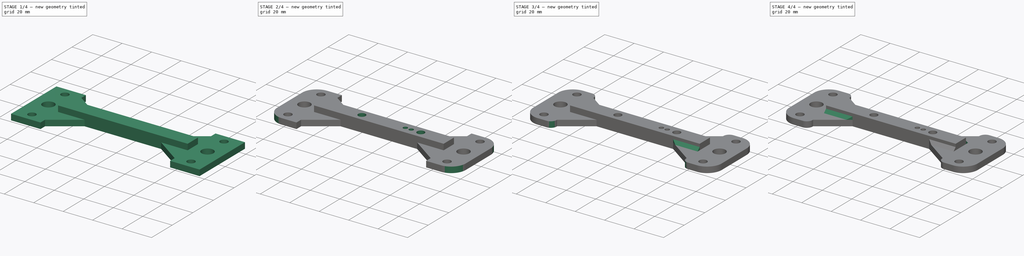
[diagram: build sequence overview — one tinted view per stage of 4, left to right]
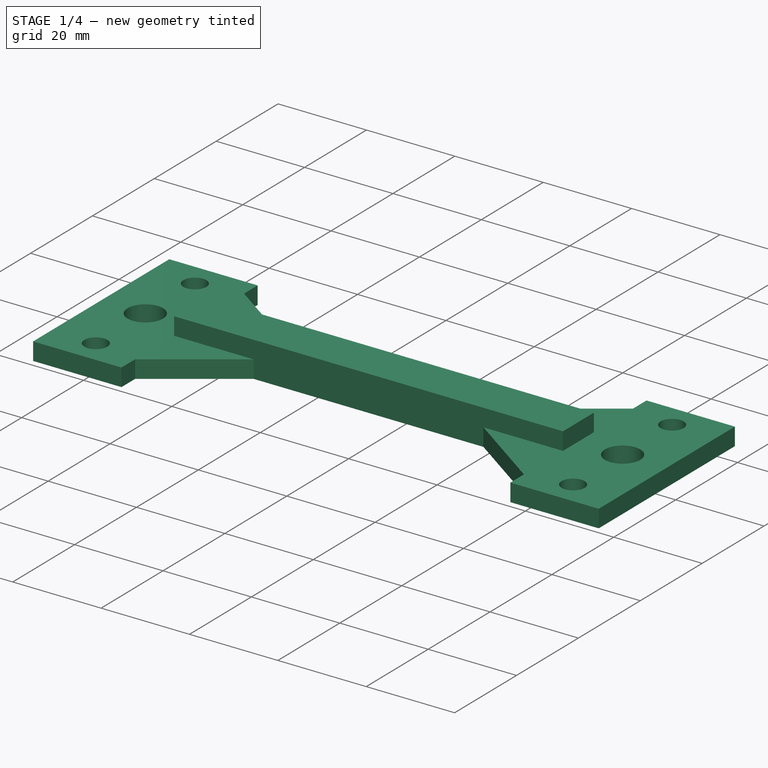
[diagram: stage 1 of 4 — iso view after this stage's code; geometry added in this stage tinted green]
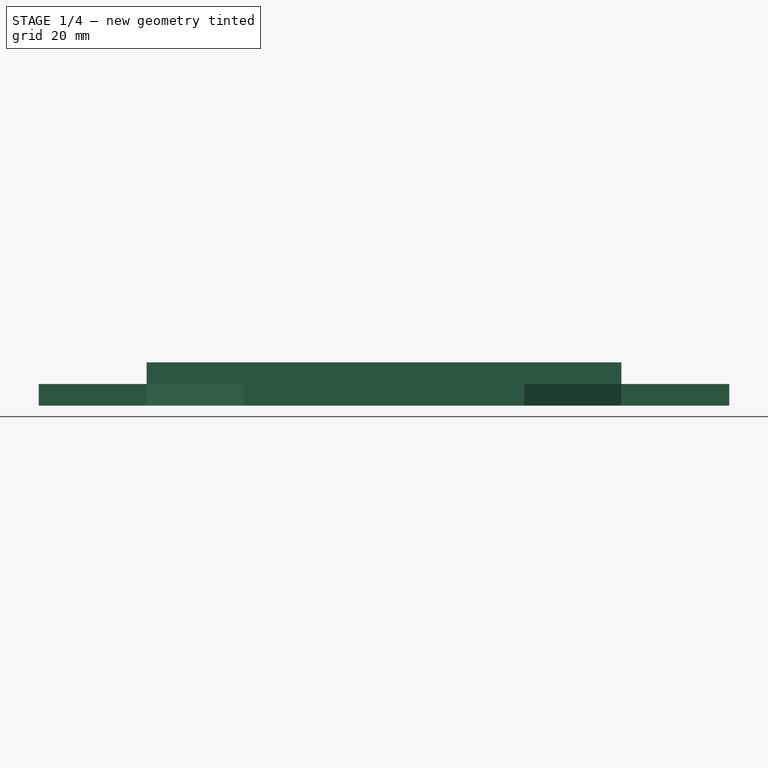
[diagram: stage 1 of 4 — front view after this stage's code; geometry added in this stage tinted green]
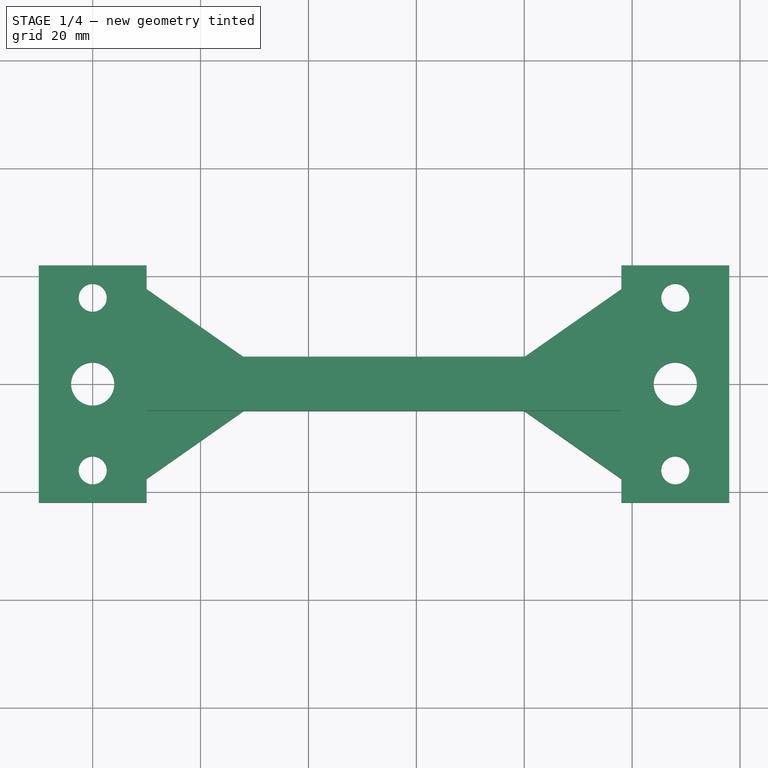
[diagram: stage 1 of 4 — top view after this stage's code; geometry added in this stage tinted green]
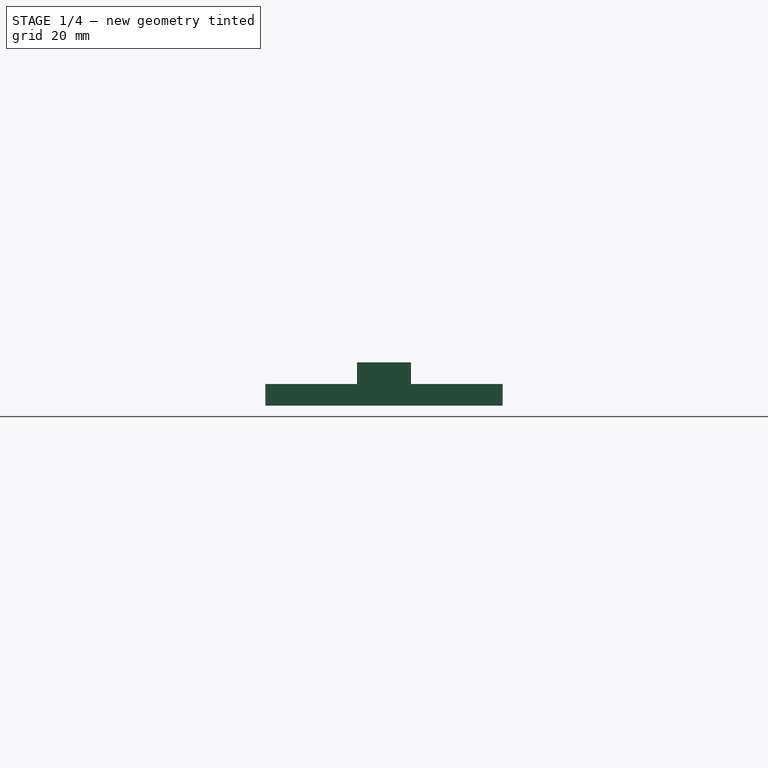
[diagram: stage 1 of 4 — right view after this stage's code; geometry added in this stage tinted green]
FCSTD DOCUMENT  (FreeCAD 0.19R24276 (Git))
Label: Guillotine_part_1_bottom_V1
License: All rights reserved
LicenseURL: http://en.wikipedia.org/wiki/All_rights_reserved
objects: PartDesign::Fillet×4, Sketcher::SketchObject×3, PartDesign::Chamfer×3, PartDesign::Pad×2, PartDesign::Pocket×1, PartDesign::Body×1
note: 24 computed .brp shape members not serialized (recipe doc carries the construction recipe); baked Part::Feature solids carry a one-line shape summary decoded from their .brp

FEATURE [Sketcher::SketchObject] Sketch
  FullyConstrained = false
  MapMode = 5
  Support = -> [XY_Plane]
  sketch-geometry (34):
    g0: Circle CenterX=0 CenterY=0 CenterZ=0 NormalX=0 NormalY=0 NormalZ=1 AngleXU=0 Radius=4
    g1: Circle CenterX=108 CenterY=0 CenterZ=0 NormalX=0 NormalY=0 NormalZ=1 AngleXU=0 Radius=4
    g2: LineSegment StartX=0 StartY=0 StartZ=0 EndX=7.48331 EndY=0 EndZ=0
    g3: LineSegment StartX=54 StartY=44 StartZ=0 EndX=54 EndY=0 EndZ=0
    g4: Circle CenterX=39 CenterY=0 CenterZ=0 NormalX=0 NormalY=0 NormalZ=1 AngleXU=0 Radius=2.5
    g5: Circle CenterX=79 CenterY=0 CenterZ=0 NormalX=0 NormalY=0 NormalZ=1 AngleXU=0 Radius=2.5
    g6: Circle CenterX=72.5 CenterY=0 CenterZ=0 NormalX=0 NormalY=0 NormalZ=1 AngleXU=0 Radius=1.5
    g7: Circle CenterX=68.5 CenterY=0 CenterZ=0 NormalX=0 NormalY=0 NormalZ=1 AngleXU=0 Radius=1.5
    g8: Circle CenterX=108 CenterY=16 CenterZ=0 NormalX=0 NormalY=0 NormalZ=1 AngleXU=0 Radius=2.6
    g9: Circle CenterX=108 CenterY=-16 CenterZ=0 NormalX=0 NormalY=0 NormalZ=1 AngleXU=0 Radius=2.6
    g10: Circle CenterX=54 CenterY=44 CenterZ=0 NormalX=0 NormalY=0 NormalZ=1 AngleXU=0 Radius=43.5
    g11: LineSegment StartX=54 StartY=0 StartZ=0 EndX=54 EndY=-44 EndZ=0
    g12: Circle CenterX=54 CenterY=-44 CenterZ=0 NormalX=0 NormalY=0 NormalZ=1 AngleXU=0 Radius=43.5
    g13: LineSegment StartX=80 StartY=5 StartZ=0 EndX=98 EndY=17.6037 EndZ=0
    g14: LineSegment StartX=98 StartY=22 StartZ=0 EndX=118 EndY=22 EndZ=0
    g15: LineSegment StartX=118 StartY=22 StartZ=0 EndX=118 EndY=-22 EndZ=0
    g16: LineSegment StartX=118 StartY=-22 StartZ=0 EndX=98 EndY=-22 EndZ=0
    g17: LineSegment StartX=98 StartY=-22 StartZ=0 EndX=98 EndY=-17.6037 EndZ=0
    g18: LineSegment StartX=98 StartY=17.6037 StartZ=0 EndX=98 EndY=22 EndZ=0
    g19: LineSegment StartX=28 StartY=-5 StartZ=0 EndX=10 EndY=-17.6037 EndZ=0
    g20: LineSegment StartX=28 StartY=5 StartZ=0 EndX=10 EndY=17.6037 EndZ=0
    g21: LineSegment StartX=10 StartY=17.6037 StartZ=0 EndX=10 EndY=22 EndZ=0
    g22: LineSegment StartX=10 StartY=22 StartZ=0 EndX=-10 EndY=22 EndZ=0
    g23: LineSegment StartX=-10 StartY=22 StartZ=0 EndX=-10 EndY=-22 EndZ=0
    g24: Circle CenterX=0 CenterY=16 CenterZ=0 NormalX=0 NormalY=0 NormalZ=1 AngleXU=0 Radius=2.6
    g25: Circle CenterX=0 CenterY=0 CenterZ=0 NormalX=0 NormalY=0 NormalZ=1 AngleXU=0 Radius=4
    g26: Circle CenterX=5e-16 CenterY=-16 CenterZ=0 NormalX=0 NormalY=0 NormalZ=1 AngleXU=0 Radius=2.6
    g27: LineSegment StartX=-10 StartY=-22 StartZ=0 EndX=10 EndY=-22 EndZ=0
    g28: LineSegment StartX=10 StartY=-22 StartZ=0 EndX=10 EndY=-17.6037 EndZ=0
    g29: LineSegment StartX=31.5978 StartY=23.4977 StartZ=0 EndX=31.5978 EndY=-53.4446 EndZ=0
    g30: LineSegment StartX=80 StartY=5 StartZ=0 EndX=13.0088 EndY=5 EndZ=0
    g31: LineSegment StartX=80 StartY=5 StartZ=0 EndX=28 EndY=5 EndZ=0
    g32: LineSegment StartX=28 StartY=-5 StartZ=0 EndX=80 EndY=-5 EndZ=0
    g33: LineSegment StartX=98 StartY=-17.6037 StartZ=0 EndX=80 EndY=-5 EndZ=0
  constraints (91):
    c: Coincident(g0,g-1)
    c: Diameter(g0) = 8
    c: Diameter(g1) = 8
    c: Coincident(g2,g0)
    c: PointOnObject(g2,g-1)
    c: DistanceX(g0,g1) = 108
    c: Horizontal(g1,g0)
    c: Vertical(g3)
    c: Symmetric(g0,g1,g3)
    c: PointOnObject(g4,g-1)
    c: PointOnObject(g5,g-1)
    c: Diameter(g4) = 5
    c: Equal(g4,g5)
    c: DistanceX(g4,g3) = 15
    c: DistanceX(g3,g5) = 25
    c: PointOnObject(g6,g-1)
    c: PointOnObject(g7,g-1)
    c: Diameter(g6) = 3
    c: Equal(g6,g7)
    c: DistanceX(g6,g5) = 6.5
    c: DistanceX(g7,g6) = 4
    c: Vertical(g9,g1)
    c: Vertical(g8,g1)
    c: Diameter(g9) = 5.2
    c: Equal(g9,g8)
    c: DistanceY(g1,g8) = 16
    c: DistanceY(g9,g1) = 16
    c: Coincident(g10,g3)
    c: Coincident(g11,g3)
    c: Vertical(g11)
    c: Coincident(g12,g11)
    c: Diameter(g12) = 87
    c: Equal(g12,g10)
    c: DistanceY(g3,g3) = 44
    c: DistanceY(g11,g11) = 44
    c: DistanceX(g3,g13) = 26
    c: Coincident(g14,g15)
    c: Coincident(g15,g16)
    c: Coincident(g16,g17)
    c: Coincident(g18,g14)
    c: Horizontal(g14)
    c: Horizontal(g16)
    c: Vertical(g15)
    c: Vertical(g17)
    c: Symmetric(g14,g15,g1)
    c: DistanceY(g15,g15) = 44
    c: PointOnObject(g13,g17)
    c: DistanceX(g16,g16) = 20
    c: PointOnObject(g18,g13)
    c: Vertical(g18)
    c: Equal(g14,g16)
    c: Equal(g17,g18)
    c: Diameter(g25) = 8
    c: Diameter(g26) = 5.2
    c: Equal(g26,g24)
    c: Coincident(g22,g23)
    c: Coincident(g23,g27)
    c: Coincident(g27,g28)
    c: Coincident(g21,g22)
    c: Horizontal(g22)
    c: Horizontal(g27)
    c: Vertical(g23)
    c: Vertical(g28)
    c: Symmetric(g22,g23,g25)
    c: PointOnObject(g20,g28)
    c: PointOnObject(g21,g20)
    c: Vertical(g21)
    c: Equal(g22,g27)
    c: Equal(g28,g21)
    c: Coincident(g19,g28)
    c: Equal(g23,g15)
    c: Equal(g22,g14)
    c: Equal(g19,g20)
    c: Vertical(g29)
    c: DistanceX(g23,g26) = 10
    c: DistanceY(g3,g13) = 5
    c: Coincident(g30,g13)
    c: Horizontal(g30)
    c: Angle(g13,g-1) = 2.53073
    c: Coincident(g31,g13)
    c: Horizontal(g20,g13)
    c: DistanceX(g20,g3) = 26
    c: Coincident(g31,g20)
    c: Angle(g20,g-1) = 0.610865
    c: Coincident(g25,g-1)
    c: Angle(g-1,g19) = 0.610865
    c: Coincident(g32,g19)
    c: Horizontal(g32)
    c: Coincident(g33,g17)
    c: Angle(g-1,g33) = 2.53073
    c: Coincident(g32,g33)
FEATURE [PartDesign::Pad] Pad
  Direction = (1,1,1)
  Length = 4
  Length2 = 100
  Profile = -> Sketch
  Type = 0
FEATURE [Sketcher::SketchObject] Sketch006
  FullyConstrained = false
  MapMode = 5
  Placement = pos=(0,0,4) rot=(0,0,1;0rad)
  Support = -> [Pad]
  sketch-geometry (6):
    g0: LineSegment StartX=10 StartY=5 StartZ=0 EndX=98 EndY=5 EndZ=0
    g1: LineSegment StartX=98 StartY=5 StartZ=0 EndX=98 EndY=-5 EndZ=0
    g2: LineSegment StartX=98 StartY=-5 StartZ=0 EndX=10 EndY=-5 EndZ=0
    g3: LineSegment StartX=10 StartY=-5 StartZ=0 EndX=10 EndY=5 EndZ=0
    g4: LineSegment StartX=0 StartY=0 StartZ=0 EndX=54 EndY=0 EndZ=0
    g5: LineSegment StartX=54 StartY=0 StartZ=0 EndX=54 EndY=-40.3265 EndZ=0
  constraints (16):
    c: Coincident(g0,g1)
    c: Coincident(g1,g2)
    c: Coincident(g2,g3)
    c: Coincident(g3,g0)
    c: Horizontal(g0)
    c: Horizontal(g2)
    c: Vertical(g1)
    c: Vertical(g3)
    c: DistanceX(g-1,g5) = 54
    c: Coincident(g4,g-1)
    c: Coincident(g4,g5)
    c: Symmetric(g0,g1,g4)
    c: Horizontal(g4)
    c: Vertical(g5)
    c: DistanceY(g1,g1) = 10
    c: DistanceX(g2,g2) = 88
FEATURE [PartDesign::Pad] Pad001
  BaseFeature = -> Pad
  Direction = (1,1,1)
  Length = 4
  Length2 = 100
  Profile = -> Sketch006
  Type = 0
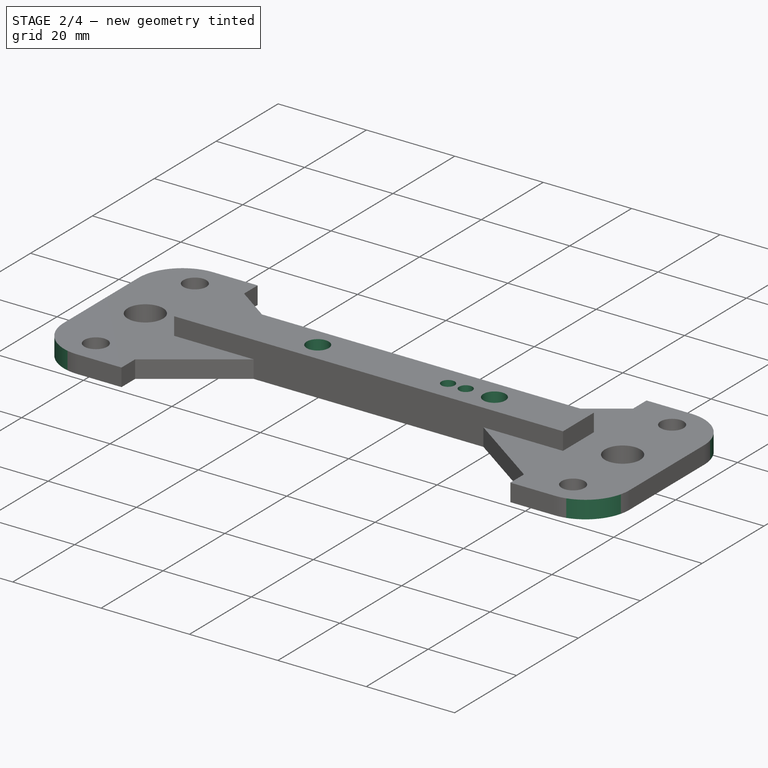
[diagram: stage 2 of 4 — iso view after this stage's code; geometry added in this stage tinted green]
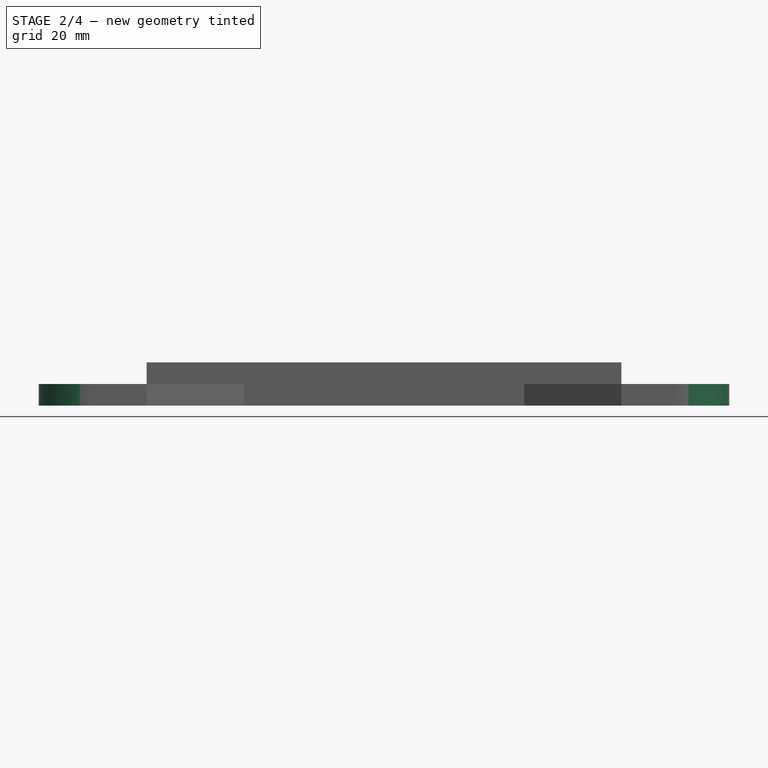
[diagram: stage 2 of 4 — front view after this stage's code; geometry added in this stage tinted green]
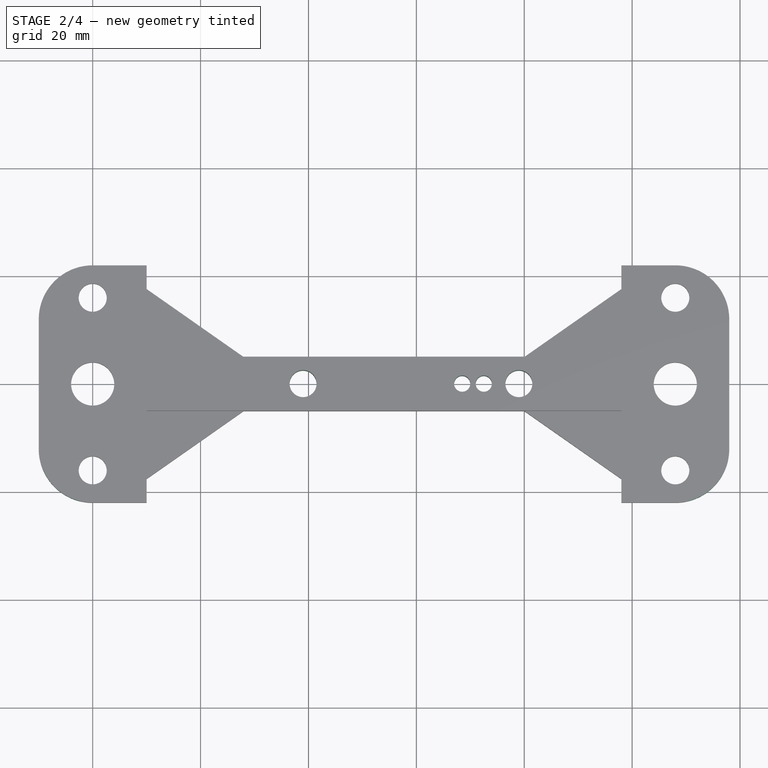
[diagram: stage 2 of 4 — top view after this stage's code; geometry added in this stage tinted green]
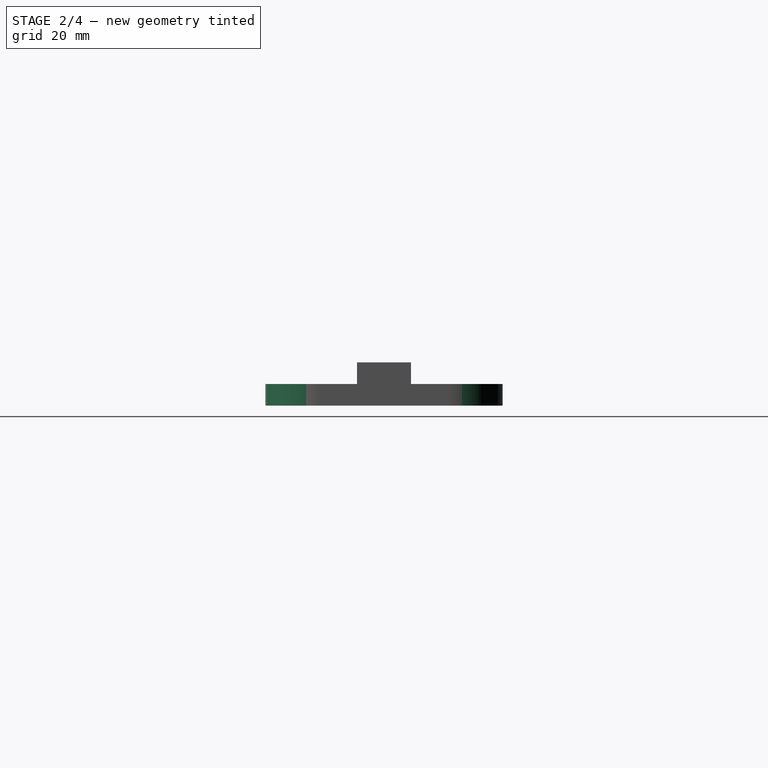
[diagram: stage 2 of 4 — right view after this stage's code; geometry added in this stage tinted green]
FEATURE [Sketcher::SketchObject] Sketch007
  FullyConstrained = false
  MapMode = 5
  sketch-geometry (33):
    g0: Circle CenterX=0 CenterY=0 CenterZ=0 NormalX=0 NormalY=0 NormalZ=1 AngleXU=0 Radius=4
    g1: Circle CenterX=108 CenterY=0 CenterZ=0 NormalX=0 NormalY=0 NormalZ=1 AngleXU=0 Radius=4
    g2: LineSegment StartX=0 StartY=0 StartZ=0 EndX=7.48331 EndY=0 EndZ=0
    g3: LineSegment StartX=54 StartY=44 StartZ=0 EndX=54 EndY=0 EndZ=0
    g4: Circle CenterX=39 CenterY=0 CenterZ=0 NormalX=0 NormalY=0 NormalZ=1 AngleXU=0 Radius=2.5
    g5: Circle CenterX=79 CenterY=0 CenterZ=0 NormalX=0 NormalY=0 NormalZ=1 AngleXU=0 Radius=2.5
    g6: Circle CenterX=72.5 CenterY=0 CenterZ=0 NormalX=0 NormalY=0 NormalZ=1 AngleXU=0 Radius=1.5
    g7: Circle CenterX=68.5 CenterY=0 CenterZ=0 NormalX=0 NormalY=0 NormalZ=1 AngleXU=0 Radius=1.5
    g8: Circle CenterX=108 CenterY=16 CenterZ=0 NormalX=0 NormalY=0 NormalZ=1 AngleXU=0 Radius=2.6
    g9: Circle CenterX=108 CenterY=-16 CenterZ=0 NormalX=0 NormalY=0 NormalZ=1 AngleXU=0 Radius=2.6
    g10: Circle CenterX=54 CenterY=44 CenterZ=0 NormalX=0 NormalY=0 NormalZ=1 AngleXU=0 Radius=43.5
    g11: LineSegment StartX=54 StartY=0 StartZ=0 EndX=54 EndY=-44 EndZ=0
    g12: Circle CenterX=54 CenterY=-44 CenterZ=0 NormalX=0 NormalY=0 NormalZ=1 AngleXU=0 Radius=43.5
    g13: LineSegment StartX=80 StartY=5 StartZ=0 EndX=98 EndY=17.6037 EndZ=0
    g14: LineSegment StartX=98 StartY=22 StartZ=0 EndX=118 EndY=22 EndZ=0
    g15: LineSegment StartX=118 StartY=22 StartZ=0 EndX=118 EndY=-22 EndZ=0
    g16: LineSegment StartX=118 StartY=-22 StartZ=0 EndX=98 EndY=-22 EndZ=0
    g17: LineSegment StartX=98 StartY=-22 StartZ=0 EndX=98 EndY=-17.6037 EndZ=0
    g18: LineSegment StartX=98 StartY=17.6037 StartZ=0 EndX=98 EndY=22 EndZ=0
    g19: LineSegment StartX=28 StartY=-5 StartZ=0 EndX=10 EndY=-17.6037 EndZ=0
    g20: LineSegment StartX=28 StartY=5 StartZ=0 EndX=10 EndY=17.6037 EndZ=0
    g21: LineSegment StartX=10 StartY=17.6037 StartZ=0 EndX=10 EndY=22 EndZ=0
    g22: LineSegment StartX=10 StartY=22 StartZ=0 EndX=-10 EndY=22 EndZ=0
    g23: LineSegment StartX=-10 StartY=22 StartZ=0 EndX=-10 EndY=-22 EndZ=0
    g24: Circle CenterX=0 CenterY=16 CenterZ=0 NormalX=0 NormalY=0 NormalZ=1 AngleXU=0 Radius=2.6
    g25: Circle CenterX=0 CenterY=0 CenterZ=0 NormalX=0 NormalY=0 NormalZ=1 AngleXU=0 Radius=4
    g26: Circle CenterX=-8e-16 CenterY=-16 CenterZ=0 NormalX=0 NormalY=0 NormalZ=1 AngleXU=0 Radius=2.6
    g27: LineSegment StartX=-10 StartY=-22 StartZ=0 EndX=10 EndY=-22 EndZ=0
    g28: LineSegment StartX=10 StartY=-22 StartZ=0 EndX=10 EndY=-17.6037 EndZ=0
    g29: LineSegment StartX=31.5978 StartY=23.4977 StartZ=0 EndX=31.5978 EndY=-53.4446 EndZ=0
    g30: LineSegment StartX=80 StartY=5 StartZ=0 EndX=28 EndY=5 EndZ=0
    g31: LineSegment StartX=28 StartY=-5 StartZ=0 EndX=80 EndY=-5 EndZ=0
    g32: LineSegment StartX=98 StartY=-17.6037 StartZ=0 EndX=80 EndY=-5 EndZ=0
  constraints (89):
    c: Coincident(g0,g-1)
    c: Diameter(g0) = 8
    c: Diameter(g1) = 8
    c: Coincident(g2,g0)
    c: PointOnObject(g2,g-1)
    c: DistanceX(g0,g1) = 108
    c: Horizontal(g1,g0)
    c: Vertical(g3)
    c: Symmetric(g0,g1,g3)
    c: PointOnObject(g4,g-1)
    c: PointOnObject(g5,g-1)
    c: Diameter(g4) = 5
    c: Equal(g4,g5)
    c: DistanceX(g4,g3) = 15
    c: DistanceX(g3,g5) = 25
    c: PointOnObject(g6,g-1)
    c: PointOnObject(g7,g-1)
    c: Diameter(g6) = 3
    c: Equal(g6,g7)
    c: DistanceX(g6,g5) = 6.5
    c: DistanceX(g7,g6) = 4
    c: Vertical(g9,g1)
    c: Vertical(g8,g1)
    c: Diameter(g9) = 5.2
    c: Equal(g9,g8)
    c: DistanceY(g1,g8) = 16
    c: DistanceY(g9,g1) = 16
    c: Coincident(g10,g3)
    c: Coincident(g11,g3)
    c: Vertical(g11)
    c: Coincident(g12,g11)
    c: Diameter(g12) = 87
    c: Equal(g12,g10)
    c: DistanceY(g3,g3) = 44
    c: DistanceY(g11,g11) = 44
    c: DistanceX(g3,g13) = 26
    c: Coincident(g14,g15)
    c: Coincident(g15,g16)
    c: Coincident(g16,g17)
    c: Coincident(g18,g14)
    c: Horizontal(g14)
    c: Horizontal(g16)
    c: Vertical(g15)
    c: Vertical(g17)
    c: Symmetric(g14,g15,g1)
    c: DistanceY(g15,g15) = 44
    c: PointOnObject(g13,g17)
    c: DistanceX(g16,g16) = 20
    c: PointOnObject(g18,g13)
    c: Vertical(g18)
    c: Equal(g14,g16)
    c: Equal(g17,g18)
    c: Diameter(g25) = 8
    c: Diameter(g26) = 5.2
    c: Equal(g26,g24)
    c: Coincident(g22,g23)
    c: Coincident(g23,g27)
    c: Coincident(g27,g28)
    c: Coincident(g21,g22)
    c: Horizontal(g22)
    c: Horizontal(g27)
    c: Vertical(g23)
    c: Vertical(g28)
    c: Symmetric(g22,g23,g25)
    c: PointOnObject(g20,g28)
    c: PointOnObject(g21,g20)
    c: Vertical(g21)
    c: Equal(g22,g27)
    c: Equal(g28,g21)
    c: Coincident(g19,g28)
    c: Equal(g23,g15)
    c: Equal(g22,g14)
    c: Equal(g19,g20)
    c: Vertical(g29)
    c: DistanceX(g23,g26) = 10
    c: DistanceY(g3,g13) = 5
    c: Angle(g13,g-1) = 2.53073
    c: Coincident(g30,g13)
    c: Horizontal(g20,g13)
    c: DistanceX(g20,g3) = 26
    c: Coincident(g30,g20)
    c: Angle(g20,g-1) = 0.610865
    c: Coincident(g25,g-1)
    c: Angle(g-1,g19) = 0.610865
    c: Coincident(g31,g19)
    c: Horizontal(g31)
    c: Coincident(g32,g17)
    c: Angle(g-1,g32) = 2.53073
    c: Coincident(g31,g32)
FEATURE [PartDesign::Pocket] Pocket
  BaseFeature = -> Pad001
  Length = 5
  Length2 = 100
  Profile = -> Sketch007
  Reversed = true
  Type = 1
FEATURE [PartDesign::Fillet] Fillet
  Base = -> Pocket [Edge62,Edge64]
  BaseFeature = -> Pocket
  Radius = 10
  SupportTransform = false
FEATURE [PartDesign::Fillet] Fillet001
  Base = -> Fillet [Edge58,Edge54]
  BaseFeature = -> Fillet
  Radius = 10
  SupportTransform = false
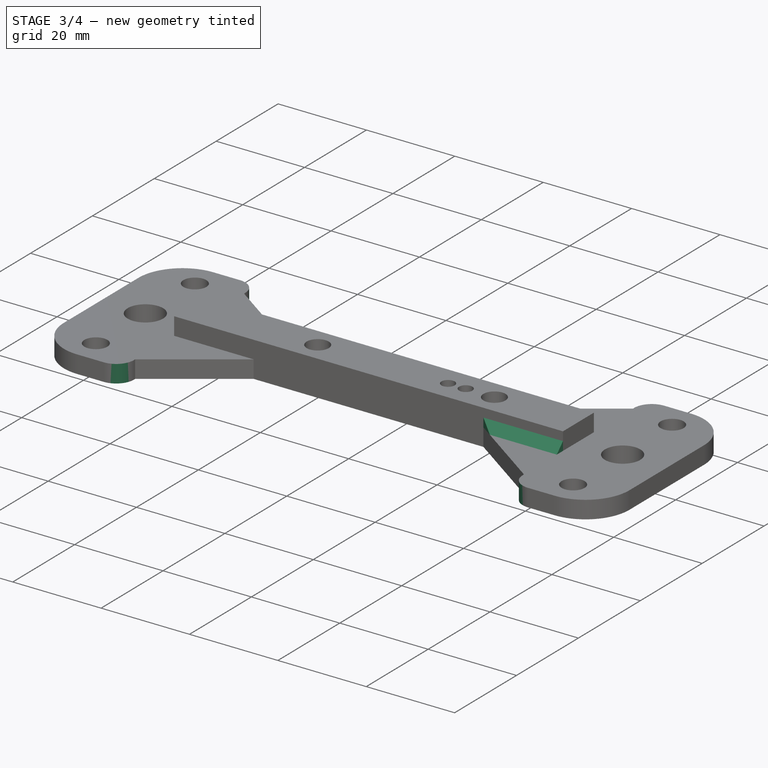
[diagram: stage 3 of 4 — iso view after this stage's code; geometry added in this stage tinted green]
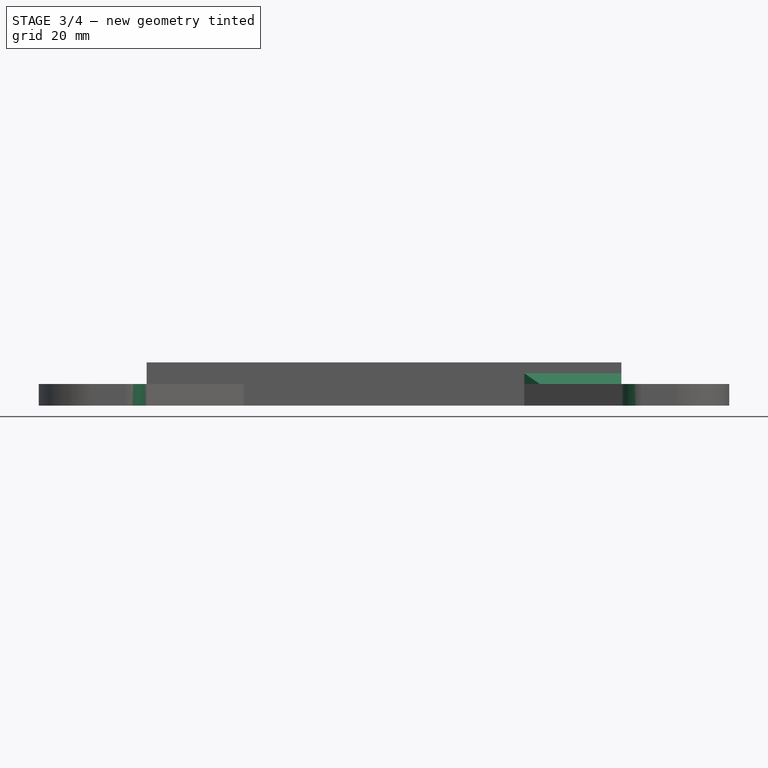
[diagram: stage 3 of 4 — front view after this stage's code; geometry added in this stage tinted green]
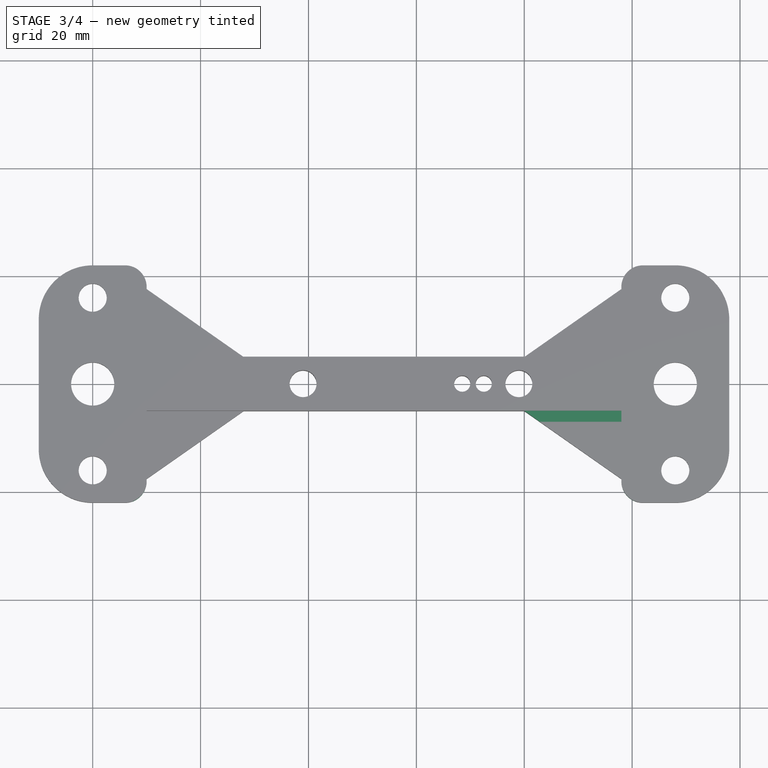
[diagram: stage 3 of 4 — top view after this stage's code; geometry added in this stage tinted green]
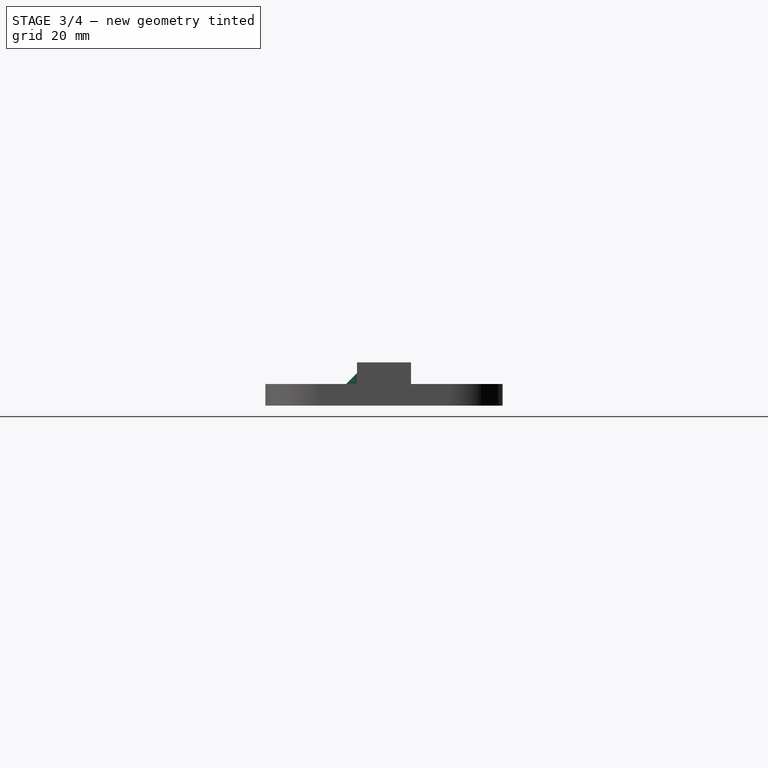
[diagram: stage 3 of 4 — right view after this stage's code; geometry added in this stage tinted green]
FEATURE [PartDesign::Fillet] Fillet002
  Base = -> Fillet001 [Edge66,Edge46]
  BaseFeature = -> Fillet001
  Radius = 4
  SupportTransform = false
FEATURE [PartDesign::Fillet] Fillet003
  Base = -> Fillet002 [Edge70,Edge50]
  BaseFeature = -> Fillet002
  Radius = 4
  SupportTransform = false
FEATURE [PartDesign::Chamfer] Chamfer
  Angle = 45
  Base = -> Fillet003 [Edge103]
  BaseFeature = -> Fillet003
  ChamferType = 0
  FlipDirection = false
  Size = 2
  Size2 = 1
  SupportTransform = false
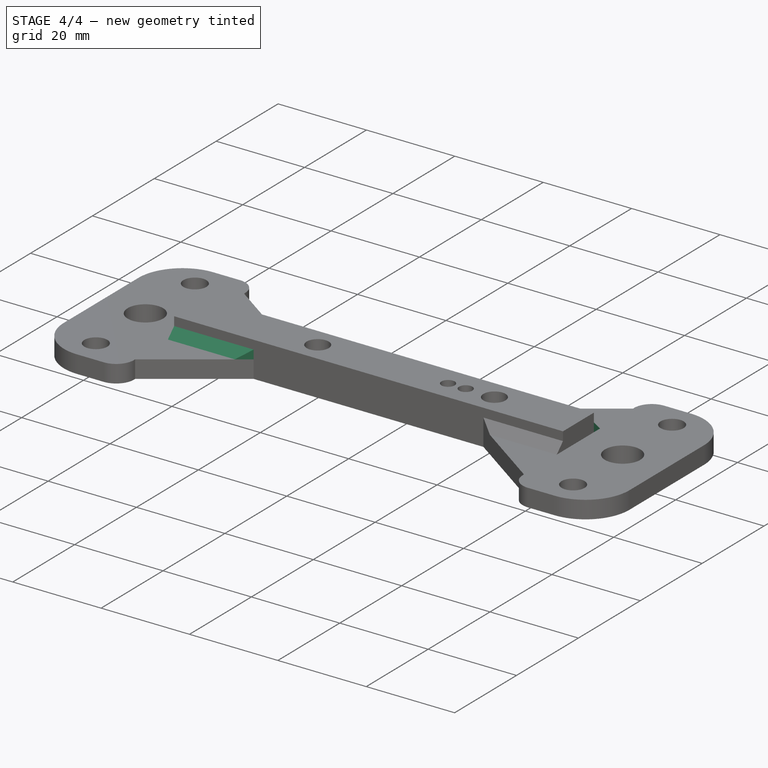
[diagram: stage 4 of 4 — iso view after this stage's code; geometry added in this stage tinted green]
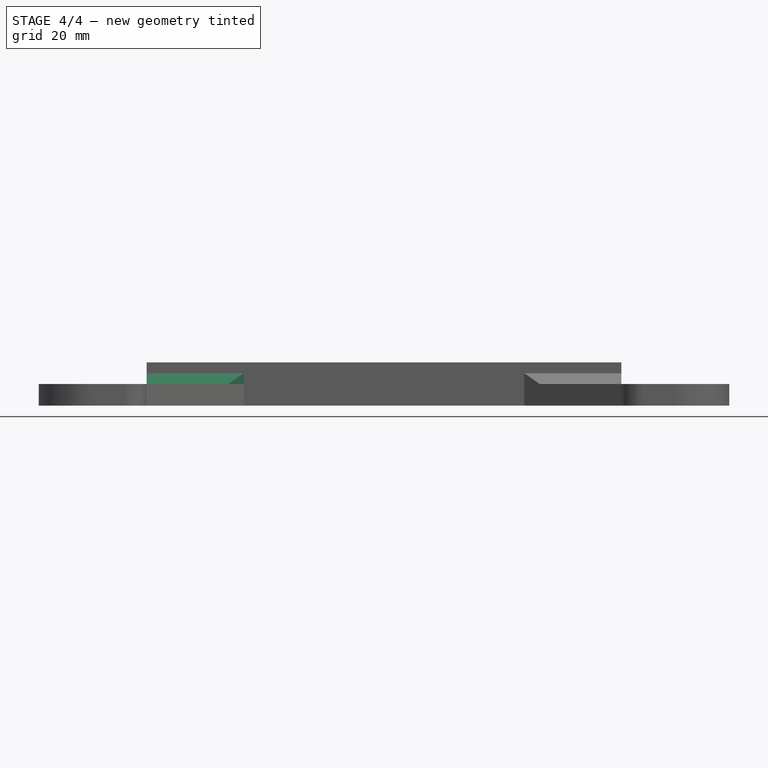
[diagram: stage 4 of 4 — front view after this stage's code; geometry added in this stage tinted green]
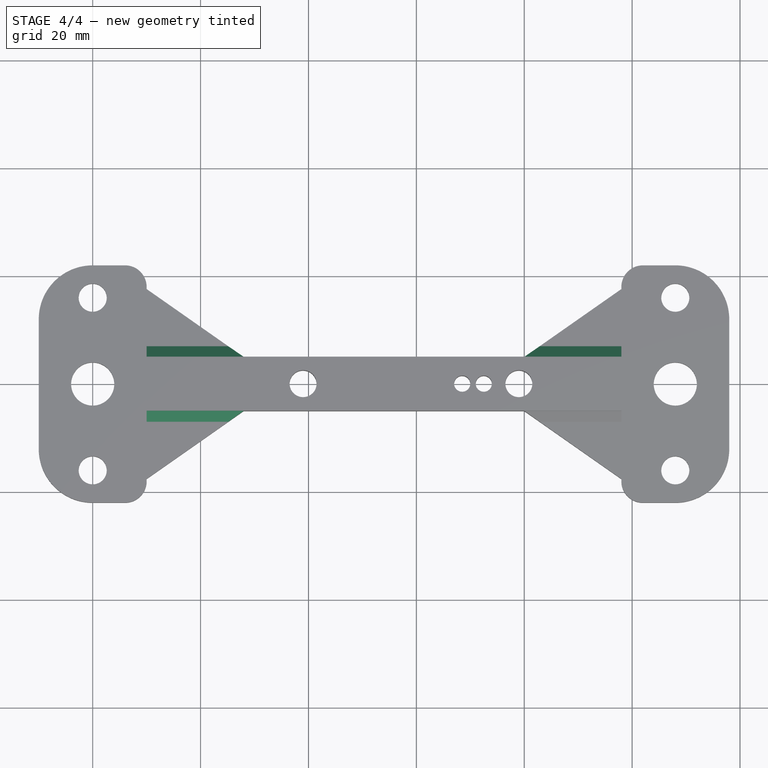
[diagram: stage 4 of 4 — top view after this stage's code; geometry added in this stage tinted green]
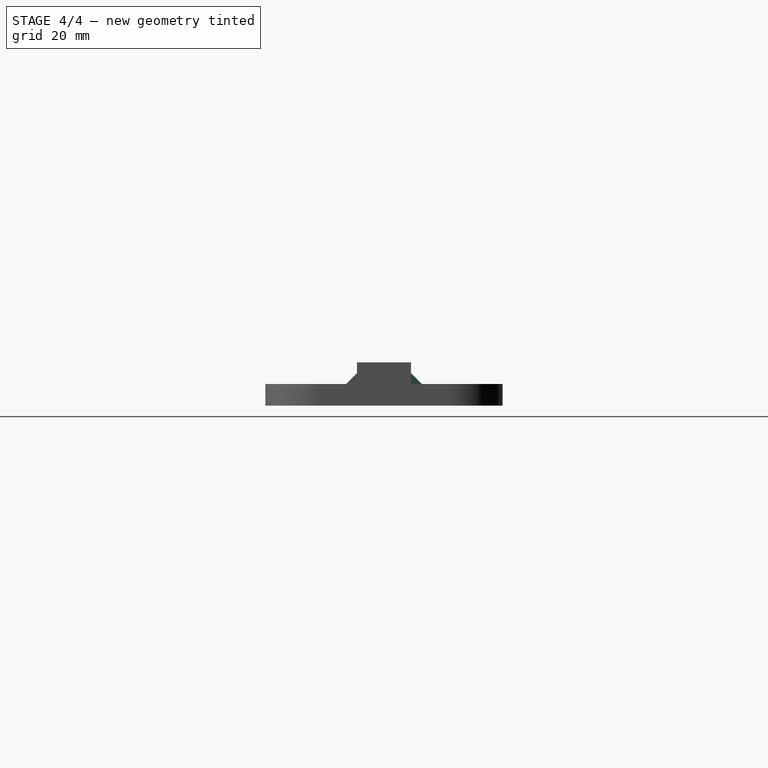
[diagram: stage 4 of 4 — right view after this stage's code; geometry added in this stage tinted green]
FEATURE [PartDesign::Chamfer] Chamfer001
  Angle = 45
  Base = -> Chamfer [Edge32]
  BaseFeature = -> Chamfer
  ChamferType = 0
  FlipDirection = false
  Size = 2
  Size2 = 1
  SupportTransform = false
FEATURE [PartDesign::Chamfer] Chamfer002
  Angle = 45
  Base = -> Chamfer001 [Edge47,Edge51]
  BaseFeature = -> Chamfer001
  ChamferType = 0
  FlipDirection = false
  Size = 2
  Size2 = 1
  SupportTransform = false
FEATURE [PartDesign::Body] Body
  Group = -> [Sketch,Pad,Sketch006,Pad001,Sketch007,Pocket,Fillet,Fillet001,Fillet002,Fillet003,Chamfer,Chamfer001,Chamfer002]
  Origin = -> Origin
  Tip = -> Chamfer002
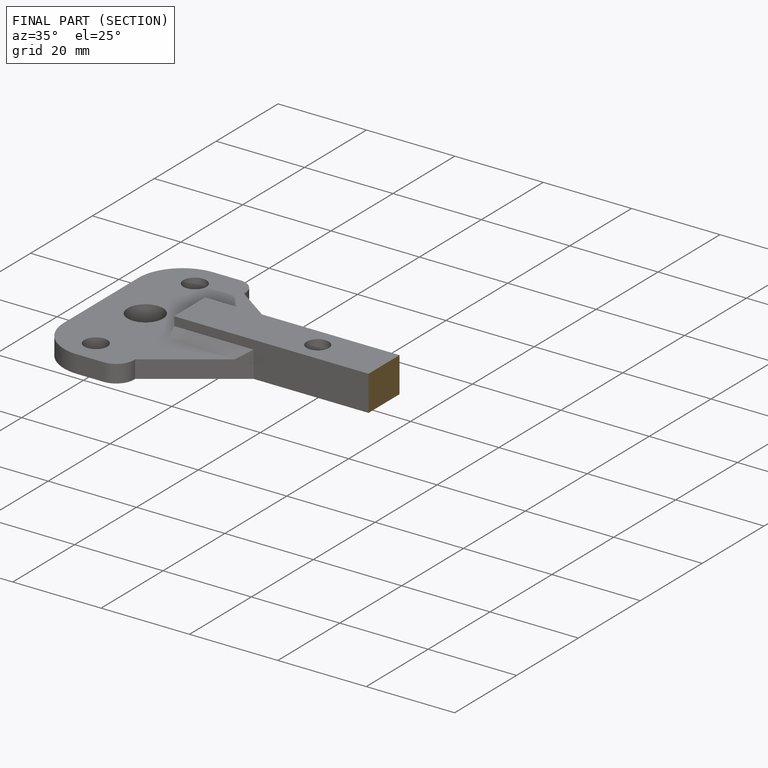
[diagram: finished part — half-section view (interior)]
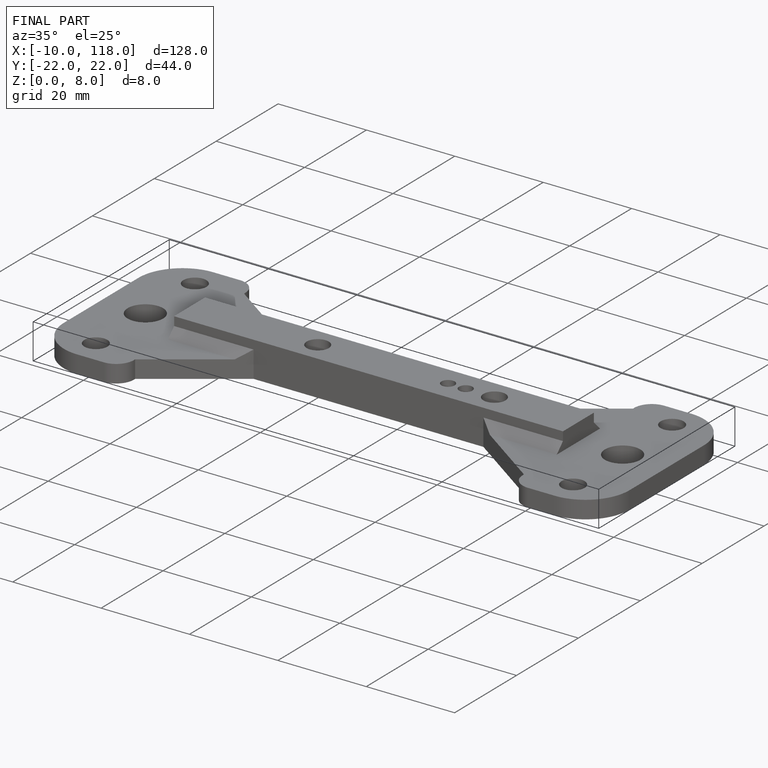
[diagram: finished part — iso view with bounding-box wireframe]
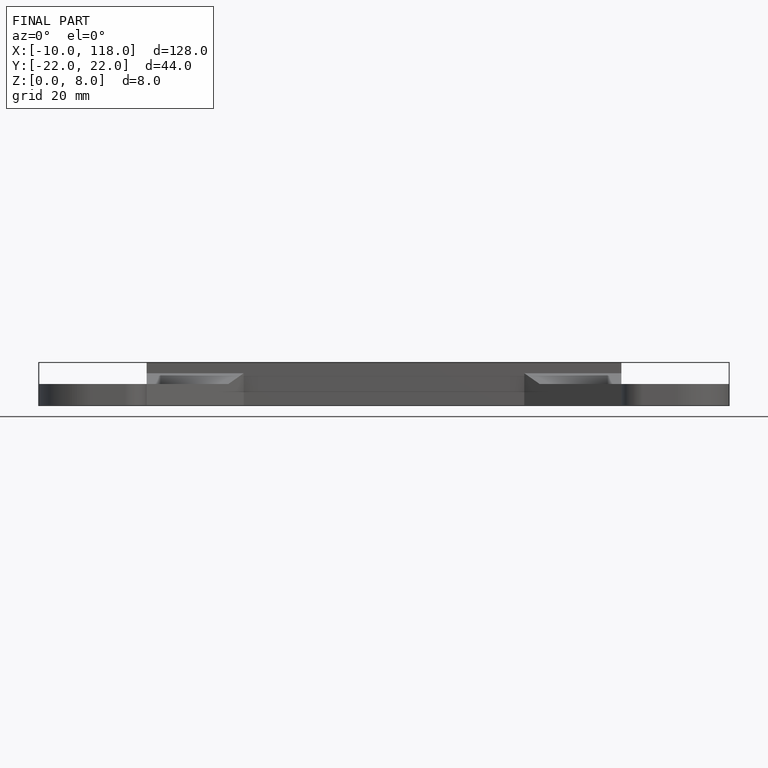
[diagram: finished part — front view with bounding-box wireframe]
